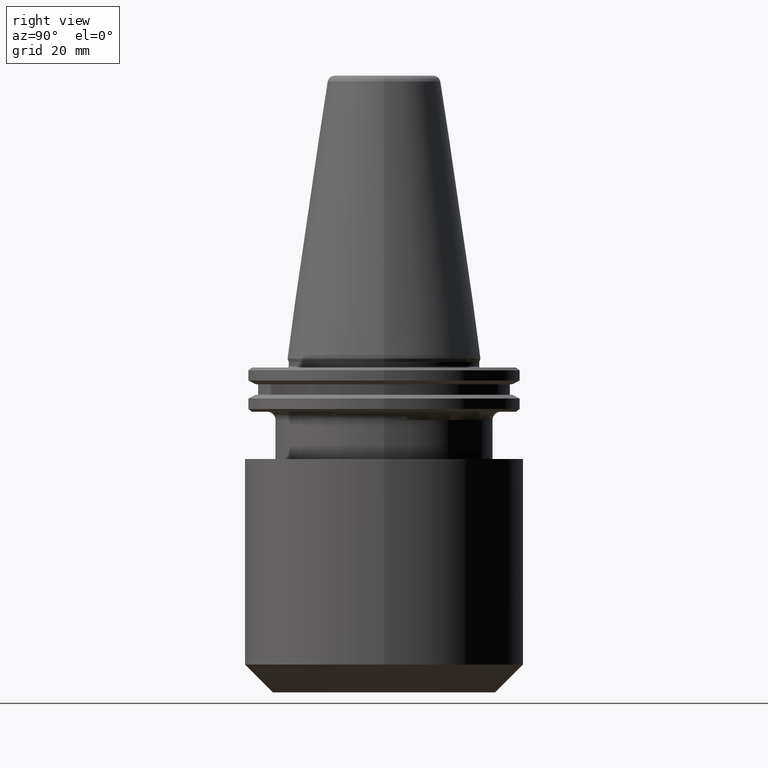
[diagram: clean part render]
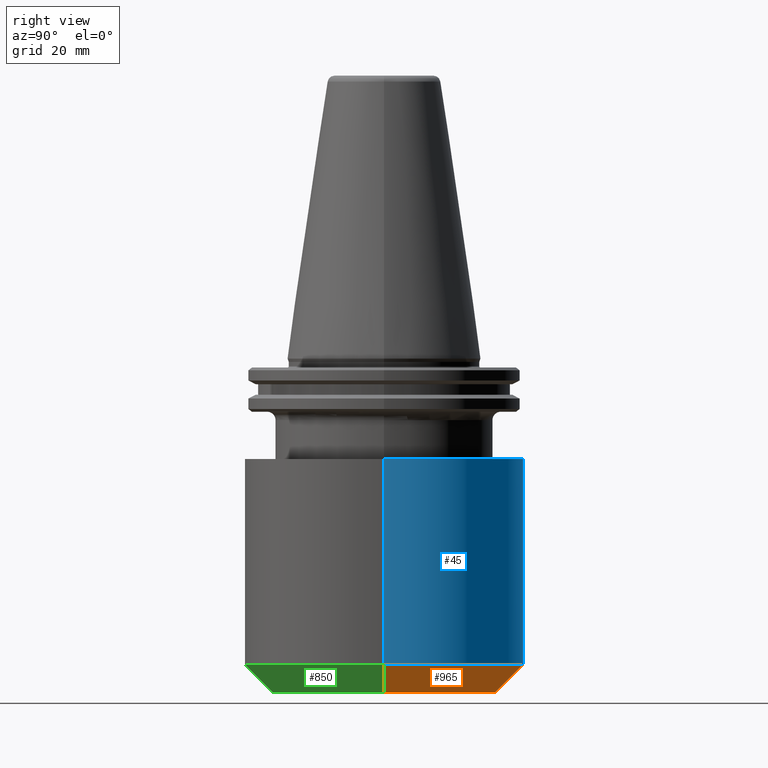
[diagram: same view with three faces highlighted in distinct colors, each labeled with its STEP entity id]
A machine part, right view with three faces highlighted in distinct colors.
Their STEP definitions:

[orange] entity #965 — the highlighted conical surface has half-angle 45 deg.
#19 = DIRECTION ( 'NONE',  ( -0.0000000000000000000, -0.0000000000000000000, 1.000000000000000000 ) ) ;
#34 = CARTESIAN_POINT ( 'NONE',  ( 40.00000000000000000, 0.0000000000000000000, -120.0000000000000900 ) ) ;
#42 = EDGE_CURVE ( 'NONE', #728, #224, #550, .T. ) ;
#70 = VERTEX_POINT ( 'NONE', #936 ) ;
#83 = AXIS2_PLACEMENT_3D ( 'NONE', #671, #675, #774 ) ;
#84 = ORIENTED_EDGE ( 'NONE', *, *, #243, .T. ) ;
#103 = DIRECTION ( 'NONE',  ( 1.000000000000000000, 0.0000000000000000000, 0.0000000000000000000 ) ) ;
#144 = VECTOR ( 'NONE', #822, 999.9999999999998900 ) ;
#164 = CARTESIAN_POINT ( 'NONE',  ( -50.00000000000000000, 6.123233995736766100E-015, -110.0000000000000700 ) ) ;
#224 = VERTEX_POINT ( 'NONE', #893 ) ;
#243 = EDGE_CURVE ( 'NONE', #224, #306, #384, .T. ) ;
#260 = AXIS2_PLACEMENT_3D ( 'NONE', #687, #19, #440 ) ;
#279 = DIRECTION ( 'NONE',  ( -0.0000000000000000000, -0.0000000000000000000, 1.000000000000000000 ) ) ;
#306 = VERTEX_POINT ( 'NONE', #164 ) ;
#384 = LINE ( 'NONE', #935, #570 ) ;
#440 = DIRECTION ( 'NONE',  ( 1.000000000000000000, 0.0000000000000000000, 0.0000000000000000000 ) ) ;
#456 = EDGE_LOOP ( 'NONE', ( #689, #84, #924, #596 ) ) ;
#476 = CIRCLE ( 'NONE', #729, 50.00000000000000000 ) ;
#502 = EDGE_CURVE ( 'NONE', #728, #70, #1031, .T. ) ;
#550 = CIRCLE ( 'NONE', #260, 40.00000000000000000 ) ;
#570 = VECTOR ( 'NONE', #653, 999.9999999999998900 ) ;
#594 = FACE_OUTER_BOUND ( 'NONE', #456, .T. ) ;
#596 = ORIENTED_EDGE ( 'NONE', *, *, #502, .F. ) ;
#637 = CONICAL_SURFACE ( 'NONE', #83, 40.00000000000000000, 0.7853981633974479500 ) ;
#653 = DIRECTION ( 'NONE',  ( -0.7071067811865472400, 8.659560562354930400E-017, 0.7071067811865479100 ) ) ;
#671 = CARTESIAN_POINT ( 'NONE',  ( 0.0000000000000000000, 0.0000000000000000000, -120.0000000000000900 ) ) ;
#675 = DIRECTION ( 'NONE',  ( -0.0000000000000000000, -0.0000000000000000000, 1.000000000000000000 ) ) ;
#687 = CARTESIAN_POINT ( 'NONE',  ( 0.0000000000000000000, 0.0000000000000000000, -120.0000000000000900 ) ) ;
#689 = ORIENTED_EDGE ( 'NONE', *, *, #42, .T. ) ;
#728 = VERTEX_POINT ( 'NONE', #34 ) ;
#729 = AXIS2_PLACEMENT_3D ( 'NONE', #861, #279, #103 ) ;
#774 = DIRECTION ( 'NONE',  ( 1.000000000000000000, 0.0000000000000000000, 0.0000000000000000000 ) ) ;
#822 = DIRECTION ( 'NONE',  ( 0.7071067811865472400, 0.0000000000000000000, 0.7071067811865479100 ) ) ;
#846 = EDGE_CURVE ( 'NONE', #70, #306, #476, .T. ) ;
#861 = CARTESIAN_POINT ( 'NONE',  ( 0.0000000000000000000, 0.0000000000000000000, -110.0000000000000700 ) ) ;
#893 = CARTESIAN_POINT ( 'NONE',  ( -40.00000000000000000, 5.510910596163089600E-015, -120.0000000000000900 ) ) ;
#924 = ORIENTED_EDGE ( 'NONE', *, *, #846, .F. ) ;
#935 = CARTESIAN_POINT ( 'NONE',  ( -40.00000000000000000, 4.898587196589413000E-015, -120.0000000000000900 ) ) ;
#936 = CARTESIAN_POINT ( 'NONE',  ( 50.00000000000000000, 0.0000000000000000000, -110.0000000000000700 ) ) ;
#965 = ADVANCED_FACE ( 'NONE', ( #594 ), #637, .T. ) ;
#973 = CARTESIAN_POINT ( 'NONE',  ( 40.00000000000000000, 0.0000000000000000000, -120.0000000000000900 ) ) ;
#1031 = LINE ( 'NONE', #973, #144 ) ;

[blue] entity #45 — the highlighted cylindrical surface (partial cylindrical patch) has radius 50 mm, axis along (-0, -0, 1).
#45 = ADVANCED_FACE ( 'NONE', ( #991 ), #960, .T. ) ;
#70 = VERTEX_POINT ( 'NONE', #936 ) ;
#79 = CIRCLE ( 'NONE', #758, 50.00000000000000000 ) ;
#88 = VECTOR ( 'NONE', #611, 1000.000000000000000 ) ;
#96 = ORIENTED_EDGE ( 'NONE', *, *, #329, .F. ) ;
#103 = DIRECTION ( 'NONE',  ( 1.000000000000000000, 0.0000000000000000000, 0.0000000000000000000 ) ) ;
#164 = CARTESIAN_POINT ( 'NONE',  ( -50.00000000000000000, 6.123233995736766100E-015, -110.0000000000000700 ) ) ;
#189 = CARTESIAN_POINT ( 'NONE',  ( 0.0000000000000000000, 0.0000000000000000000, 158.1180504483445200 ) ) ;
#279 = DIRECTION ( 'NONE',  ( -0.0000000000000000000, -0.0000000000000000000, 1.000000000000000000 ) ) ;
#291 = ORIENTED_EDGE ( 'NONE', *, *, #781, .F. ) ;
#301 = EDGE_CURVE ( 'NONE', #306, #999, #572, .T. ) ;
#306 = VERTEX_POINT ( 'NONE', #164 ) ;
#329 = EDGE_CURVE ( 'NONE', #339, #999, #79, .T. ) ;
#339 = VERTEX_POINT ( 'NONE', #1029 ) ;
#389 = DIRECTION ( 'NONE',  ( -0.0000000000000000000, -0.0000000000000000000, 1.000000000000000000 ) ) ;
#403 = EDGE_LOOP ( 'NONE', ( #648, #948, #96, #291 ) ) ;
#476 = CIRCLE ( 'NONE', #729, 50.00000000000000000 ) ;
#572 = LINE ( 'NONE', #619, #958 ) ;
#611 = DIRECTION ( 'NONE',  ( -0.0000000000000000000, -0.0000000000000000000, 1.000000000000000000 ) ) ;
#616 = CARTESIAN_POINT ( 'NONE',  ( 50.00000000000000000, 0.0000000000000000000, 158.1180504483445200 ) ) ;
#619 = CARTESIAN_POINT ( 'NONE',  ( -50.00000000000000000, 6.123233995736766100E-015, 158.1180504483445200 ) ) ;
#648 = ORIENTED_EDGE ( 'NONE', *, *, #846, .T. ) ;
#669 = AXIS2_PLACEMENT_3D ( 'NONE', #189, #389, #1010 ) ;
#729 = AXIS2_PLACEMENT_3D ( 'NONE', #861, #279, #103 ) ;
#758 = AXIS2_PLACEMENT_3D ( 'NONE', #1007, #829, #889 ) ;
#781 = EDGE_CURVE ( 'NONE', #70, #339, #944, .T. ) ;
#829 = DIRECTION ( 'NONE',  ( -0.0000000000000000000, -0.0000000000000000000, 1.000000000000000000 ) ) ;
#846 = EDGE_CURVE ( 'NONE', #70, #306, #476, .T. ) ;
#861 = CARTESIAN_POINT ( 'NONE',  ( 0.0000000000000000000, 0.0000000000000000000, -110.0000000000000700 ) ) ;
#889 = DIRECTION ( 'NONE',  ( 1.000000000000000000, 0.0000000000000000000, 0.0000000000000000000 ) ) ;
#916 = CARTESIAN_POINT ( 'NONE',  ( -50.00000000000000000, 6.123233995736766100E-015, -36.09999999999993700 ) ) ;
#936 = CARTESIAN_POINT ( 'NONE',  ( 50.00000000000000000, 0.0000000000000000000, -110.0000000000000700 ) ) ;
#944 = LINE ( 'NONE', #616, #88 ) ;
#948 = ORIENTED_EDGE ( 'NONE', *, *, #301, .T. ) ;
#958 = VECTOR ( 'NONE', #1037, 1000.000000000000000 ) ;
#960 = CYLINDRICAL_SURFACE ( 'NONE', #669, 50.00000000000000000 ) ;
#991 = FACE_OUTER_BOUND ( 'NONE', #403, .T. ) ;
#999 = VERTEX_POINT ( 'NONE', #916 ) ;
#1007 = CARTESIAN_POINT ( 'NONE',  ( 0.0000000000000000000, 0.0000000000000000000, -36.09999999999993700 ) ) ;
#1010 = DIRECTION ( 'NONE',  ( 1.000000000000000000, 0.0000000000000000000, 0.0000000000000000000 ) ) ;
#1029 = CARTESIAN_POINT ( 'NONE',  ( 50.00000000000000000, 0.0000000000000000000, -36.09999999999993700 ) ) ;
#1037 = DIRECTION ( 'NONE',  ( -0.0000000000000000000, -0.0000000000000000000, 1.000000000000000000 ) ) ;

[green] entity #850 — the highlighted conical surface has half-angle 45 deg.
#34 = CARTESIAN_POINT ( 'NONE',  ( 40.00000000000000000, 0.0000000000000000000, -120.0000000000000900 ) ) ;
#49 = EDGE_LOOP ( 'NONE', ( #1025, #672, #494, #343 ) ) ;
#70 = VERTEX_POINT ( 'NONE', #936 ) ;
#109 = DIRECTION ( 'NONE',  ( -0.0000000000000000000, -0.0000000000000000000, 1.000000000000000000 ) ) ;
#144 = VECTOR ( 'NONE', #822, 999.9999999999998900 ) ;
#164 = CARTESIAN_POINT ( 'NONE',  ( -50.00000000000000000, 6.123233995736766100E-015, -110.0000000000000700 ) ) ;
#224 = VERTEX_POINT ( 'NONE', #893 ) ;
#243 = EDGE_CURVE ( 'NONE', #224, #306, #384, .T. ) ;
#247 = CARTESIAN_POINT ( 'NONE',  ( 0.0000000000000000000, 0.0000000000000000000, -120.0000000000000900 ) ) ;
#306 = VERTEX_POINT ( 'NONE', #164 ) ;
#343 = ORIENTED_EDGE ( 'NONE', *, *, #853, .F. ) ;
#357 = CARTESIAN_POINT ( 'NONE',  ( 0.0000000000000000000, 0.0000000000000000000, -120.0000000000000900 ) ) ;
#358 = EDGE_CURVE ( 'NONE', #224, #728, #703, .T. ) ;
#384 = LINE ( 'NONE', #935, #570 ) ;
#451 = FACE_OUTER_BOUND ( 'NONE', #49, .T. ) ;
#494 = ORIENTED_EDGE ( 'NONE', *, *, #502, .T. ) ;
#502 = EDGE_CURVE ( 'NONE', #728, #70, #1031, .T. ) ;
#525 = DIRECTION ( 'NONE',  ( 1.000000000000000000, 0.0000000000000000000, 0.0000000000000000000 ) ) ;
#568 = DIRECTION ( 'NONE',  ( 1.000000000000000000, 0.0000000000000000000, 0.0000000000000000000 ) ) ;
#570 = VECTOR ( 'NONE', #653, 999.9999999999998900 ) ;
#601 = CARTESIAN_POINT ( 'NONE',  ( 0.0000000000000000000, 0.0000000000000000000, -110.0000000000000700 ) ) ;
#622 = AXIS2_PLACEMENT_3D ( 'NONE', #247, #659, #568 ) ;
#635 = AXIS2_PLACEMENT_3D ( 'NONE', #601, #1019, #934 ) ;
#651 = CONICAL_SURFACE ( 'NONE', #674, 40.00000000000000000, 0.7853981633974479500 ) ;
#653 = DIRECTION ( 'NONE',  ( -0.7071067811865472400, 8.659560562354930400E-017, 0.7071067811865479100 ) ) ;
#659 = DIRECTION ( 'NONE',  ( -0.0000000000000000000, -0.0000000000000000000, 1.000000000000000000 ) ) ;
#672 = ORIENTED_EDGE ( 'NONE', *, *, #358, .T. ) ;
#674 = AXIS2_PLACEMENT_3D ( 'NONE', #357, #109, #525 ) ;
#703 = CIRCLE ( 'NONE', #622, 40.00000000000000000 ) ;
#728 = VERTEX_POINT ( 'NONE', #34 ) ;
#822 = DIRECTION ( 'NONE',  ( 0.7071067811865472400, 0.0000000000000000000, 0.7071067811865479100 ) ) ;
#850 = ADVANCED_FACE ( 'NONE', ( #451 ), #651, .T. ) ;
#853 = EDGE_CURVE ( 'NONE', #306, #70, #873, .T. ) ;
#873 = CIRCLE ( 'NONE', #635, 50.00000000000000000 ) ;
#893 = CARTESIAN_POINT ( 'NONE',  ( -40.00000000000000000, 5.510910596163089600E-015, -120.0000000000000900 ) ) ;
#934 = DIRECTION ( 'NONE',  ( 1.000000000000000000, 0.0000000000000000000, 0.0000000000000000000 ) ) ;
#935 = CARTESIAN_POINT ( 'NONE',  ( -40.00000000000000000, 4.898587196589413000E-015, -120.0000000000000900 ) ) ;
#936 = CARTESIAN_POINT ( 'NONE',  ( 50.00000000000000000, 0.0000000000000000000, -110.0000000000000700 ) ) ;
#973 = CARTESIAN_POINT ( 'NONE',  ( 40.00000000000000000, 0.0000000000000000000, -120.0000000000000900 ) ) ;
#1019 = DIRECTION ( 'NONE',  ( -0.0000000000000000000, -0.0000000000000000000, 1.000000000000000000 ) ) ;
#1025 = ORIENTED_EDGE ( 'NONE', *, *, #243, .F. ) ;
#1031 = LINE ( 'NONE', #973, #144 ) ;